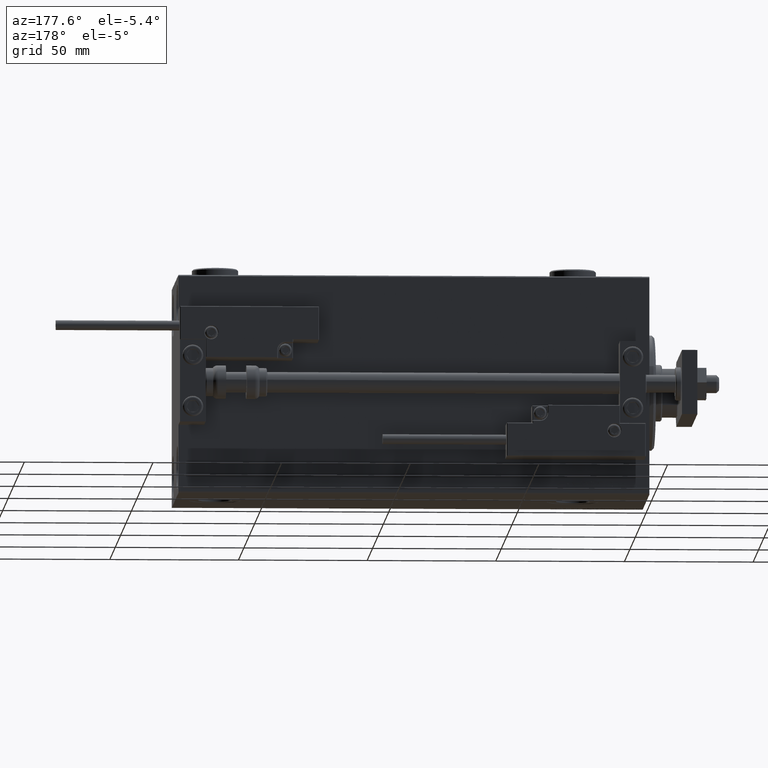
[diagram: clean part render]
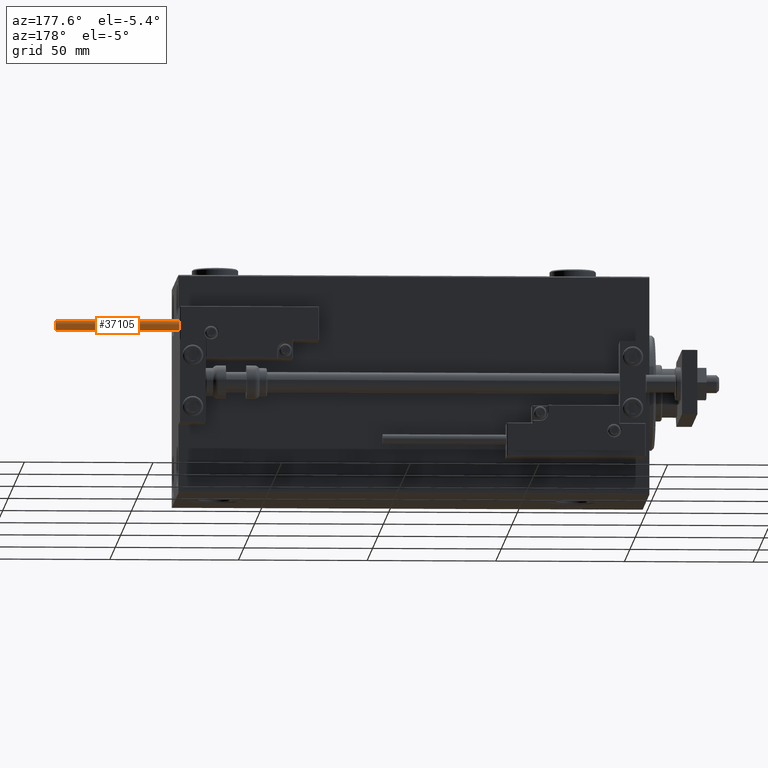
[diagram: same view with one face highlighted and labeled with its STEP entity id]
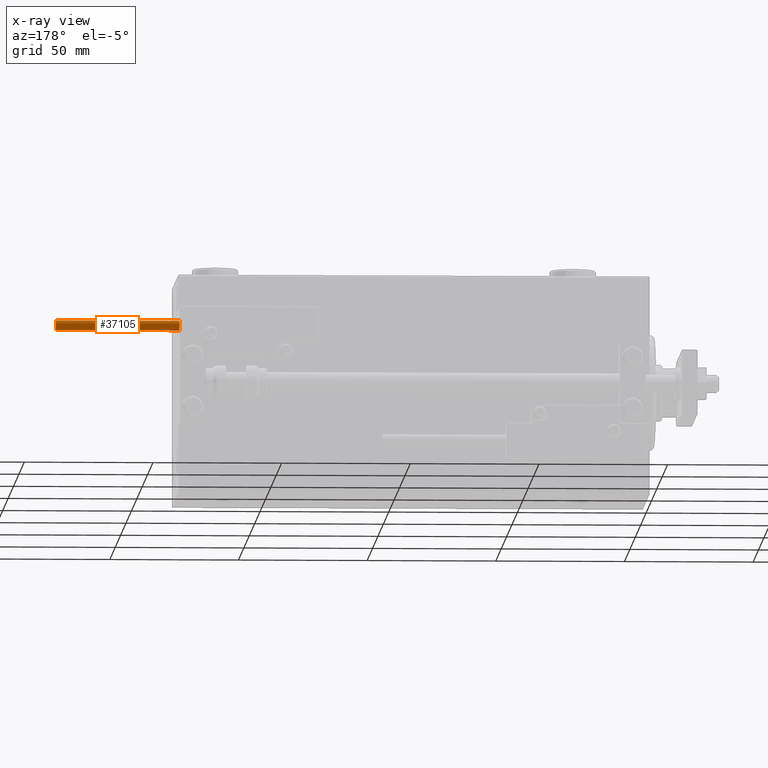
[diagram: x-ray of the same camera — body ghosted, the highlighted face saturated]
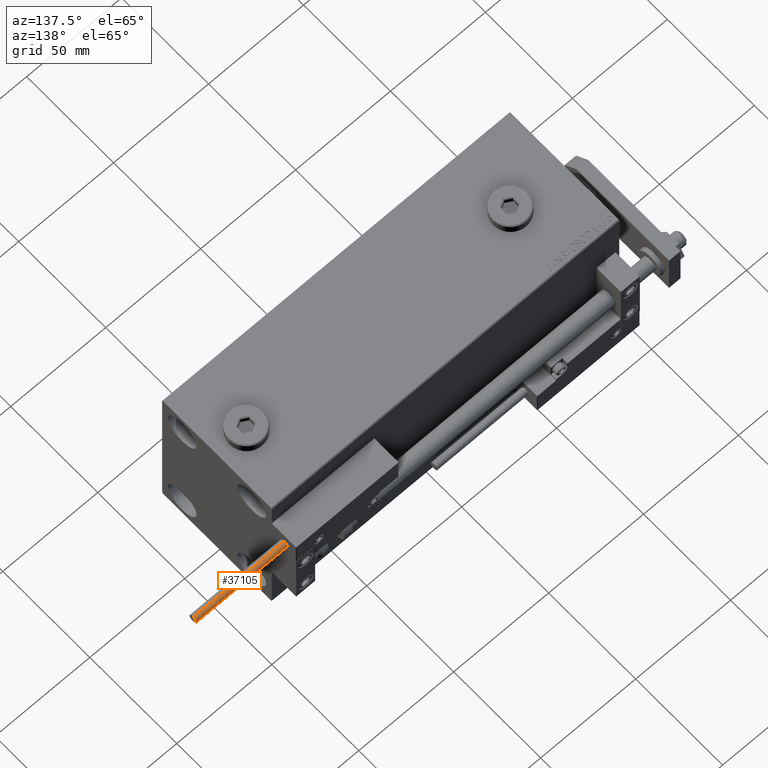
[diagram: same view with one face highlighted and labeled with its STEP entity id]
A machine part, auxiliary view. The second image highlights one B-rep face of the part: STEP entity #37105.
The next image is the same camera in x-ray: the body ghosted, the highlighted face saturated — about 0% of this face is hidden behind the body in this view.
A second angle (auxiliary view) of the same face is appended — the face is thin or edge-on in the first view.
In plain terms, the highlighted cylindrical surface (edge-blend (fillet) strip) has radius 1.9 mm, axis along (-1, -0, 0).
Its self-contained STEP definition (entity closure, byte-faithful):
#766 = CARTESIAN_POINT ( 'NONE',  ( 1.899999999999999467, 2.326828918379970872E-16, 0.000000000000000000 ) ) ;
#2966 = DIRECTION ( 'NONE',  ( 1.000000000000000000, 0.000000000000000000, 0.000000000000000000 ) ) ;
#3608 = AXIS2_PLACEMENT_3D ( 'NONE', #14968, #51442, #2966 ) ;
#7990 = ORIENTED_EDGE ( 'NONE', *, *, #36625, .T. ) ;
#9269 = VERTEX_POINT ( 'NONE', #34779 ) ;
#11369 = CARTESIAN_POINT ( 'NONE',  ( -1.899999999999999467, 0.000000000000000000, 48.00000000000000000 ) ) ;
#13263 = DIRECTION ( 'NONE',  ( 1.000000000000000000, 0.000000000000000000, 0.000000000000000000 ) ) ;
#14968 = CARTESIAN_POINT ( 'NONE',  ( 0.000000000000000000, 0.000000000000000000, 48.00000000000000000 ) ) ;
#15164 = CARTESIAN_POINT ( 'NONE',  ( 1.899999999999999467, 2.326828918379970872E-16, 48.00000000000000000 ) ) ;
#15832 = ORIENTED_EDGE ( 'NONE', *, *, #43885, .F. ) ;
#16368 = VECTOR ( 'NONE', #18928, 1000.000000000000000 ) ;
#18928 = DIRECTION ( 'NONE',  ( -0.000000000000000000, -0.000000000000000000, -1.000000000000000000 ) ) ;
#21504 = CARTESIAN_POINT ( 'NONE',  ( 0.000000000000000000, 0.000000000000000000, 48.00000000000000000 ) ) ;
#24892 = DIRECTION ( 'NONE',  ( -1.000000000000000000, 0.000000000000000000, 0.000000000000000000 ) ) ;
#26896 = CIRCLE ( 'NONE', #3608, 1.899999999999999467 ) ;
#27541 = VECTOR ( 'NONE', #46341, 1000.000000000000000 ) ;
#27848 = ORIENTED_EDGE ( 'NONE', *, *, #50943, .F. ) ;
#29196 = EDGE_CURVE ( 'NONE', #37334, #46052, #30464, .T. ) ;
#30464 = LINE ( 'NONE', #46602, #27541 ) ;
#32624 = AXIS2_PLACEMENT_3D ( 'NONE', #21504, #46418, #24892 ) ;
#33477 = FACE_OUTER_BOUND ( 'NONE', #48363, .T. ) ;
#34779 = CARTESIAN_POINT ( 'NONE',  ( -1.899999999999999467, 0.000000000000000000, 48.00000000000000000 ) ) ;
#36625 = EDGE_CURVE ( 'NONE', #46052, #47802, #50930, .T. ) ;
#36861 = CARTESIAN_POINT ( 'NONE',  ( -1.899999999999999467, 0.000000000000000000, 0.000000000000000000 ) ) ;
#37105 = ADVANCED_FACE ( 'NONE', ( #33477 ), #49111, .T. ) ;
#37334 = VERTEX_POINT ( 'NONE', #15164 ) ;
#40129 = AXIS2_PLACEMENT_3D ( 'NONE', #40870, #45540, #13263 ) ;
#40870 = CARTESIAN_POINT ( 'NONE',  ( 0.000000000000000000, 0.000000000000000000, 0.000000000000000000 ) ) ;
#43885 = EDGE_CURVE ( 'NONE', #37334, #9269, #26896, .T. ) ;
#45540 = DIRECTION ( 'NONE',  ( 0.000000000000000000, 0.000000000000000000, 1.000000000000000000 ) ) ;
#46052 = VERTEX_POINT ( 'NONE', #766 ) ;
#46341 = DIRECTION ( 'NONE',  ( -0.000000000000000000, -0.000000000000000000, -1.000000000000000000 ) ) ;
#46418 = DIRECTION ( 'NONE',  ( -0.000000000000000000, -0.000000000000000000, -1.000000000000000000 ) ) ;
#46602 = CARTESIAN_POINT ( 'NONE',  ( 1.899999999999999467, 2.326828918379970872E-16, 48.00000000000000000 ) ) ;
#47802 = VERTEX_POINT ( 'NONE', #36861 ) ;
#48363 = EDGE_LOOP ( 'NONE', ( #15832, #50160, #7990, #27848 ) ) ;
#49111 = CYLINDRICAL_SURFACE ( 'NONE', #32624, 1.899999999999999467 ) ;
#50160 = ORIENTED_EDGE ( 'NONE', *, *, #29196, .T. ) ;
#50930 = CIRCLE ( 'NONE', #40129, 1.899999999999999467 ) ;
#50943 = EDGE_CURVE ( 'NONE', #9269, #47802, #51229, .T. ) ;
#51229 = LINE ( 'NONE', #11369, #16368 ) ;
#51442 = DIRECTION ( 'NONE',  ( 0.000000000000000000, 0.000000000000000000, 1.000000000000000000 ) ) ;